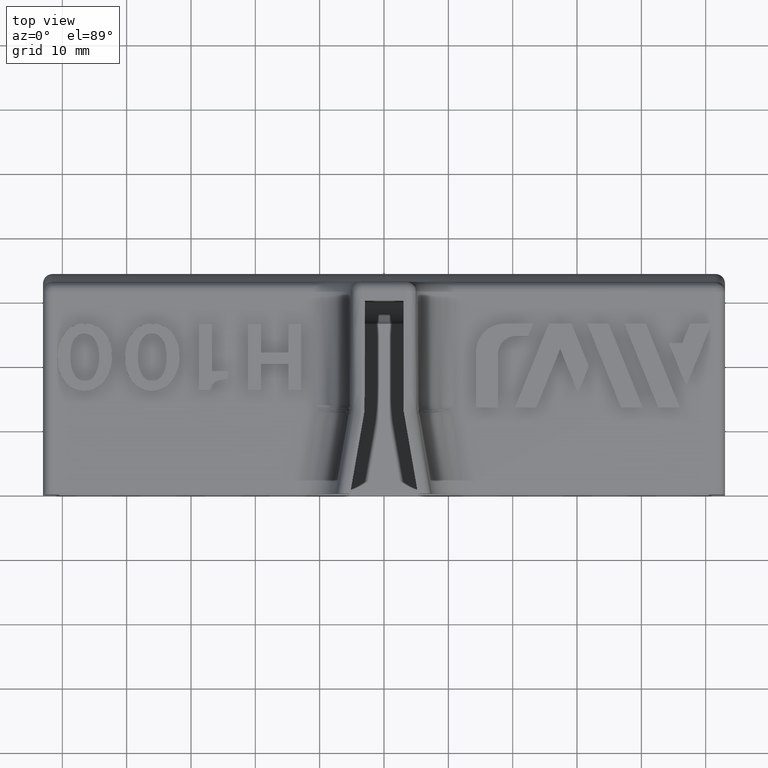
[diagram: clean part render]
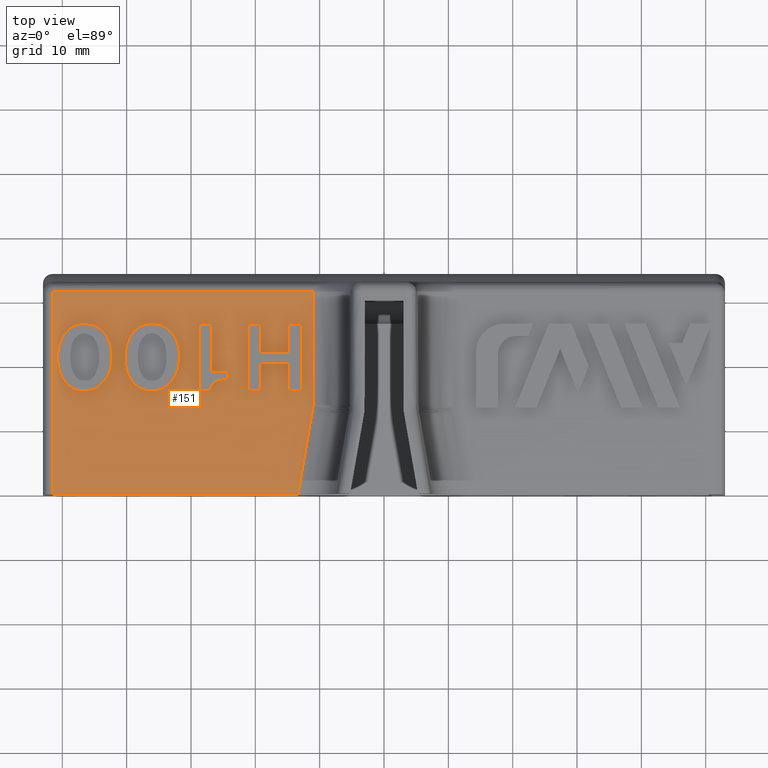
[diagram: same view with one face highlighted and labeled with its STEP entity id]
A machine part, top view. The second image highlights one B-rep face of the part: STEP entity #151.
In plain terms, the highlighted planar face has unit normal (0, 0, 1).
Its self-contained STEP definition (entity closure, byte-faithful):
#151=ADVANCED_FACE('',(#314,#315,#316,#317,#318),#319,.T.);
#314=FACE_BOUND('',#870,.T.);
#315=FACE_OUTER_BOUND('',#871,.T.);
#316=FACE_BOUND('',#872,.T.);
#317=FACE_BOUND('',#873,.T.);
#318=FACE_BOUND('',#874,.T.);
#319=PLANE('',#875);
#870=EDGE_LOOP('',(#2020,#2021));
#871=EDGE_LOOP('',(#2022,#2023,#2024,#2025,#2026));
#872=EDGE_LOOP('',(#2027,#2028,#2029,#2030,#2031,#2032,#2033,#2034,#2035,#2036,#2037,#2038));
#873=EDGE_LOOP('',(#2039,#2040,#2041,#2042,#2043,#2044,#2045));
#874=EDGE_LOOP('',(#2046,#2047));
#875=AXIS2_PLACEMENT_3D('',#2048,#2049,#2050);
#2020=ORIENTED_EDGE('',*,*,#2867,.T.);
#2021=ORIENTED_EDGE('',*,*,#2986,.T.);
#2022=ORIENTED_EDGE('',*,*,#2987,.T.);
#2023=ORIENTED_EDGE('',*,*,#2955,.T.);
#2024=ORIENTED_EDGE('',*,*,#2988,.T.);
#2025=ORIENTED_EDGE('',*,*,#2989,.T.);
#2026=ORIENTED_EDGE('',*,*,#2990,.F.);
#2027=ORIENTED_EDGE('',*,*,#2917,.T.);
#2028=ORIENTED_EDGE('',*,*,#2940,.T.);
#2029=ORIENTED_EDGE('',*,*,#2938,.T.);
#2030=ORIENTED_EDGE('',*,*,#2936,.T.);
#2031=ORIENTED_EDGE('',*,*,#2934,.T.);
#2032=ORIENTED_EDGE('',*,*,#2932,.T.);
#2033=ORIENTED_EDGE('',*,*,#2930,.T.);
#2034=ORIENTED_EDGE('',*,*,#2928,.T.);
#2035=ORIENTED_EDGE('',*,*,#2926,.T.);
#2036=ORIENTED_EDGE('',*,*,#2924,.T.);
#2037=ORIENTED_EDGE('',*,*,#2922,.T.);
#2038=ORIENTED_EDGE('',*,*,#2920,.T.);
#2039=ORIENTED_EDGE('',*,*,#2991,.T.);
#2040=ORIENTED_EDGE('',*,*,#2902,.T.);
#2041=ORIENTED_EDGE('',*,*,#2898,.T.);
#2042=ORIENTED_EDGE('',*,*,#2992,.T.);
#2043=ORIENTED_EDGE('',*,*,#2993,.T.);
#2044=ORIENTED_EDGE('',*,*,#2994,.T.);
#2045=ORIENTED_EDGE('',*,*,#2995,.T.);
#2046=ORIENTED_EDGE('',*,*,#2875,.T.);
#2047=ORIENTED_EDGE('',*,*,#2996,.T.);
#2048=CARTESIAN_POINT('',(-53.0,3.46944695195361E-15,6.0));
#2049=DIRECTION('',(1.43492962746861E-48,6.12323399573677E-17,1.0));
#2050=DIRECTION('',(-1.0,1.22464679914735E-16,-7.49879891330929E-33));
#2867=EDGE_CURVE('',#3171,#3168,#3172,.T.);
#2875=EDGE_CURVE('',#3187,#3184,#3188,.T.);
#2898=EDGE_CURVE('',#3230,#3231,#3232,.T.);
#2902=EDGE_CURVE('',#3238,#3230,#3239,.T.);
#2917=EDGE_CURVE('',#3267,#3268,#3269,.T.);
#2920=EDGE_CURVE('',#3272,#3267,#3273,.T.);
#2922=EDGE_CURVE('',#3275,#3272,#3276,.T.);
#2924=EDGE_CURVE('',#3278,#3275,#3279,.T.);
#2926=EDGE_CURVE('',#3281,#3278,#3282,.T.);
#2928=EDGE_CURVE('',#3284,#3281,#3285,.T.);
#2930=EDGE_CURVE('',#3287,#3284,#3288,.T.);
#2932=EDGE_CURVE('',#3290,#3287,#3291,.T.);
#2934=EDGE_CURVE('',#3293,#3290,#3294,.T.);
#2936=EDGE_CURVE('',#3296,#3293,#3297,.T.);
#2938=EDGE_CURVE('',#3299,#3296,#3300,.T.);
#2940=EDGE_CURVE('',#3268,#3299,#3302,.T.);
#2955=EDGE_CURVE('',#3323,#3328,#3330,.F.);
#2986=EDGE_CURVE('',#3168,#3171,#3380,.T.);
#2987=EDGE_CURVE('',#3381,#3323,#3382,.T.);
#2988=EDGE_CURVE('',#3328,#3383,#3384,.F.);
#2989=EDGE_CURVE('',#3383,#3385,#3386,.T.);
#2990=EDGE_CURVE('',#3381,#3385,#3387,.F.);
#2991=EDGE_CURVE('',#3388,#3238,#3389,.T.);
#2992=EDGE_CURVE('',#3231,#3390,#3391,.T.);
#2993=EDGE_CURVE('',#3390,#3392,#3393,.T.);
#2994=EDGE_CURVE('',#3392,#3394,#3395,.T.);
#2995=EDGE_CURVE('',#3394,#3388,#3396,.T.);
#2996=EDGE_CURVE('',#3184,#3187,#3397,.T.);
#3168=VERTEX_POINT('',#3652);
#3171=VERTEX_POINT('',#3656);
#3172=B_SPLINE_CURVE_WITH_KNOTS('',2,(#3657,#3658,#3659,#3660,#3661,#3662,#3663,#3664,#3665),.UNSPECIFIED.,.F.,.F.,(3,2,2,2,3),(0.0,1.0,2.0,3.0,4.0),.UNSPECIFIED.);
#3184=VERTEX_POINT('',#3704);
#3187=VERTEX_POINT('',#3708);
#3188=B_SPLINE_CURVE_WITH_KNOTS('',2,(#3709,#3710,#3711,#3712,#3713,#3714,#3715,#3716,#3717),.UNSPECIFIED.,.F.,.F.,(3,2,2,2,3),(0.0,1.0,2.0,3.0,4.0),.UNSPECIFIED.);
#3230=VERTEX_POINT('',#3790);
#3231=VERTEX_POINT('',#3791);
#3232=B_SPLINE_CURVE_WITH_KNOTS('',2,(#3792,#3793,#3794,#3795,#3796),.UNSPECIFIED.,.F.,.F.,(3,2,3),(1.0,2.0,3.0),.UNSPECIFIED.);
#3238=VERTEX_POINT('',#3808);
#3239=B_SPLINE_CURVE_WITH_KNOTS('',2,(#3809,#3810,#3811),.UNSPECIFIED.,.F.,.F.,(3,3),(0.0,1.0),.UNSPECIFIED.);
#3267=VERTEX_POINT('',#3866);
#3268=VERTEX_POINT('',#3867);
#3269=B_SPLINE_CURVE_WITH_KNOTS('',2,(#3868,#3869,#3870),.UNSPECIFIED.,.F.,.F.,(3,3),(11.0,12.0),.UNSPECIFIED.);
#3272=VERTEX_POINT('',#3875);
#3273=B_SPLINE_CURVE_WITH_KNOTS('',2,(#3876,#3877,#3878),.UNSPECIFIED.,.F.,.F.,(3,3),(10.0,11.0),.UNSPECIFIED.);
#3275=VERTEX_POINT('',#3881);
#3276=B_SPLINE_CURVE_WITH_KNOTS('',2,(#3882,#3883,#3884),.UNSPECIFIED.,.F.,.F.,(3,3),(9.0,10.0),.UNSPECIFIED.);
#3278=VERTEX_POINT('',#3887);
#3279=B_SPLINE_CURVE_WITH_KNOTS('',2,(#3888,#3889,#3890),.UNSPECIFIED.,.F.,.F.,(3,3),(8.0,9.0),.UNSPECIFIED.);
#3281=VERTEX_POINT('',#3893);
#3282=B_SPLINE_CURVE_WITH_KNOTS('',2,(#3894,#3895,#3896),.UNSPECIFIED.,.F.,.F.,(3,3),(7.0,8.0),.UNSPECIFIED.);
#3284=VERTEX_POINT('',#3899);
#3285=B_SPLINE_CURVE_WITH_KNOTS('',2,(#3900,#3901,#3902),.UNSPECIFIED.,.F.,.F.,(3,3),(6.0,7.0),.UNSPECIFIED.);
#3287=VERTEX_POINT('',#3905);
#3288=B_SPLINE_CURVE_WITH_KNOTS('',2,(#3906,#3907,#3908),.UNSPECIFIED.,.F.,.F.,(3,3),(5.0,6.0),.UNSPECIFIED.);
#3290=VERTEX_POINT('',#3911);
#3291=B_SPLINE_CURVE_WITH_KNOTS('',2,(#3912,#3913,#3914),.UNSPECIFIED.,.F.,.F.,(3,3),(4.0,5.0),.UNSPECIFIED.);
#3293=VERTEX_POINT('',#3917);
#3294=B_SPLINE_CURVE_WITH_KNOTS('',2,(#3918,#3919,#3920),.UNSPECIFIED.,.F.,.F.,(3,3),(3.0,4.0),.UNSPECIFIED.);
#3296=VERTEX_POINT('',#3923);
#3297=B_SPLINE_CURVE_WITH_KNOTS('',2,(#3924,#3925,#3926),.UNSPECIFIED.,.F.,.F.,(3,3),(2.0,3.0),.UNSPECIFIED.);
#3299=VERTEX_POINT('',#3929);
#3300=B_SPLINE_CURVE_WITH_KNOTS('',2,(#3930,#3931,#3932),.UNSPECIFIED.,.F.,.F.,(3,3),(1.0,2.0),.UNSPECIFIED.);
#3302=B_SPLINE_CURVE_WITH_KNOTS('',2,(#3935,#3936,#3937),.UNSPECIFIED.,.F.,.F.,(3,3),(0.0,1.0),.UNSPECIFIED.);
#3323=VERTEX_POINT('',#4077);
#3328=VERTEX_POINT('',#4092);
#3330=LINE('',#4094,#4095);
#3380=B_SPLINE_CURVE_WITH_KNOTS('',2,(#4303,#4304,#4305,#4306,#4307,#4308,#4309,#4310,#4311),.UNSPECIFIED.,.F.,.F.,(3,2,2,2,3),(4.0,5.0,6.0,7.0,8.0),.UNSPECIFIED.);
#3381=VERTEX_POINT('',#4312);
#3382=B_SPLINE_CURVE_WITH_KNOTS('',1,(#4313,#4314),.UNSPECIFIED.,.F.,.F.,(2,2),(0.0,0.921574682430469),.UNSPECIFIED.);
#3383=VERTEX_POINT('',#4315);
#3384=LINE('',#4316,#4317);
#3385=VERTEX_POINT('',#4318);
#3386=LINE('',#4319,#4320);
#3387=B_SPLINE_CURVE_WITH_KNOTS('',3,(#4321,#4322,#4323,#4324,#4325,#4326,#4327,#4328,#4329,#4330),.UNSPECIFIED.,.F.,.F.,(4,3,1,1,1,4),(0.0379210014763866,0.166666666666666,0.333333333333333,0.499999999999999,0.666666666666666,0.83203125),.UNSPECIFIED.);
#3388=VERTEX_POINT('',#4331);
#3389=B_SPLINE_CURVE_WITH_KNOTS('',2,(#4332,#4333,#4334),.UNSPECIFIED.,.F.,.F.,(3,3),(7.0,8.0),.UNSPECIFIED.);
#3390=VERTEX_POINT('',#4335);
#3391=B_SPLINE_CURVE_WITH_KNOTS('',2,(#4336,#4337,#4338),.UNSPECIFIED.,.F.,.F.,(3,3),(3.0,4.0),.UNSPECIFIED.);
#3392=VERTEX_POINT('',#4339);
#3393=B_SPLINE_CURVE_WITH_KNOTS('',2,(#4340,#4341,#4342),.UNSPECIFIED.,.F.,.F.,(3,3),(4.0,5.0),.UNSPECIFIED.);
#3394=VERTEX_POINT('',#4343);
#3395=B_SPLINE_CURVE_WITH_KNOTS('',2,(#4344,#4345,#4346),.UNSPECIFIED.,.F.,.F.,(3,3),(5.0,6.0),.UNSPECIFIED.);
#3396=B_SPLINE_CURVE_WITH_KNOTS('',2,(#4347,#4348,#4349),.UNSPECIFIED.,.F.,.F.,(3,3),(6.0,7.0),.UNSPECIFIED.);
#3397=B_SPLINE_CURVE_WITH_KNOTS('',2,(#4350,#4351,#4352,#4353,#4354,#4355,#4356,#4357,#4358),.UNSPECIFIED.,.F.,.F.,(3,2,2,2,3),(4.0,5.0,6.0,7.0,8.0),.UNSPECIFIED.);
#3652=CARTESIAN_POINT('',(-38.9830447769085,17.3376295199831,6.0));
#3656=CARTESIAN_POINT('',(-33.1182402039185,25.3004898040784,6.0));
#3657=CARTESIAN_POINT('',(-33.1182402039185,25.3004898040784,6.0));
#3658=CARTESIAN_POINT('',(-31.86875,24.0,6.0));
#3659=CARTESIAN_POINT('',(-31.7761053810419,21.7996902997456,6.0));
#3660=CARTESIAN_POINT('',(-31.66875,19.25,6.0));
#3661=CARTESIAN_POINT('',(-32.9778286919516,17.6072345826489,6.0));
#3662=CARTESIAN_POINT('',(-34.21875,16.05,6.0));
#3663=CARTESIAN_POINT('',(-36.06875,16.05,6.0));
#3664=CARTESIAN_POINT('',(-37.86875,16.05,6.0));
#3665=CARTESIAN_POINT('',(-38.9830447769085,17.3376295199831,6.0));
#3704=CARTESIAN_POINT('',(-49.4830447769084,17.3376295199831,6.0));
#3708=CARTESIAN_POINT('',(-43.6182402039184,25.3004898040784,6.0));
#3709=CARTESIAN_POINT('',(-43.6182402039184,25.3004898040784,6.0));
#3710=CARTESIAN_POINT('',(-42.36875,24.0,6.0));
#3711=CARTESIAN_POINT('',(-42.2761053810419,21.7996902997456,6.0));
#3712=CARTESIAN_POINT('',(-42.16875,19.25,6.0));
#3713=CARTESIAN_POINT('',(-43.4778286919516,17.6072345826489,6.0));
#3714=CARTESIAN_POINT('',(-44.71875,16.05,6.0));
#3715=CARTESIAN_POINT('',(-46.56875,16.05,6.0));
#3716=CARTESIAN_POINT('',(-48.36875,16.05,6.0));
#3717=CARTESIAN_POINT('',(-49.4830447769084,17.3376295199831,6.0));
#3790=CARTESIAN_POINT('',(-24.25,17.9,6.0));
#3791=CARTESIAN_POINT('',(-27.05,16.15,6.0));
#3792=CARTESIAN_POINT('',(-24.25,17.9,6.0));
#3793=CARTESIAN_POINT('',(-25.55,17.8,6.0));
#3794=CARTESIAN_POINT('',(-26.1057304785895,17.5110201511336,6.0));
#3795=CARTESIAN_POINT('',(-26.8,17.15,6.0));
#3796=CARTESIAN_POINT('',(-27.05,16.15,6.0));
#3808=CARTESIAN_POINT('',(-24.25,19.15,6.0));
#3809=CARTESIAN_POINT('',(-24.25,19.15,6.0));
#3810=CARTESIAN_POINT('',(-24.25,18.525,6.0));
#3811=CARTESIAN_POINT('',(-24.25,17.9,6.0));
#3866=CARTESIAN_POINT('',(-12.875,26.45,6.0));
#3867=CARTESIAN_POINT('',(-12.875,16.15,6.0));
#3868=CARTESIAN_POINT('',(-12.875,26.45,6.0));
#3869=CARTESIAN_POINT('',(-12.875,21.3,6.0));
#3870=CARTESIAN_POINT('',(-12.875,16.15,6.0));
#3875=CARTESIAN_POINT('',(-14.875,26.45,6.0));
#3876=CARTESIAN_POINT('',(-14.875,26.45,6.0));
#3877=CARTESIAN_POINT('',(-13.875,26.45,6.0));
#3878=CARTESIAN_POINT('',(-12.875,26.45,6.0));
#3881=CARTESIAN_POINT('',(-14.875,22.0,6.0));
#3882=CARTESIAN_POINT('',(-14.875,22.0,6.0));
#3883=CARTESIAN_POINT('',(-14.875,24.225,6.0));
#3884=CARTESIAN_POINT('',(-14.875,26.45,6.0));
#3887=CARTESIAN_POINT('',(-19.125,22.0,6.0));
#3888=CARTESIAN_POINT('',(-19.125,22.0,6.0));
#3889=CARTESIAN_POINT('',(-17.0,22.0,6.0));
#3890=CARTESIAN_POINT('',(-14.875,22.0,6.0));
#3893=CARTESIAN_POINT('',(-19.125,26.45,6.0));
#3894=CARTESIAN_POINT('',(-19.125,26.45,6.0));
#3895=CARTESIAN_POINT('',(-19.125,24.225,6.0));
#3896=CARTESIAN_POINT('',(-19.125,22.0,6.0));
#3899=CARTESIAN_POINT('',(-21.125,26.45,6.0));
#3900=CARTESIAN_POINT('',(-21.125,26.45,6.0));
#3901=CARTESIAN_POINT('',(-20.125,26.45,6.0));
#3902=CARTESIAN_POINT('',(-19.125,26.45,6.0));
#3905=CARTESIAN_POINT('',(-21.125,16.15,6.0));
#3906=CARTESIAN_POINT('',(-21.125,16.15,6.0));
#3907=CARTESIAN_POINT('',(-21.125,21.3,6.0));
#3908=CARTESIAN_POINT('',(-21.125,26.45,6.0));
#3911=CARTESIAN_POINT('',(-19.125,16.15,6.0));
#3912=CARTESIAN_POINT('',(-19.125,16.15,6.0));
#3913=CARTESIAN_POINT('',(-20.125,16.15,6.0));
#3914=CARTESIAN_POINT('',(-21.125,16.15,6.0));
#3917=CARTESIAN_POINT('',(-19.125,20.25,6.0));
#3918=CARTESIAN_POINT('',(-19.125,20.25,6.0));
#3919=CARTESIAN_POINT('',(-19.125,18.2,6.0));
#3920=CARTESIAN_POINT('',(-19.125,16.15,6.0));
#3923=CARTESIAN_POINT('',(-14.875,20.25,6.0));
#3924=CARTESIAN_POINT('',(-14.875,20.25,6.0));
#3925=CARTESIAN_POINT('',(-17.0,20.25,6.0));
#3926=CARTESIAN_POINT('',(-19.125,20.25,6.0));
#3929=CARTESIAN_POINT('',(-14.875,16.15,6.0));
#3930=CARTESIAN_POINT('',(-14.875,16.15,6.0));
#3931=CARTESIAN_POINT('',(-14.875,18.2,6.0));
#3932=CARTESIAN_POINT('',(-14.875,20.25,6.0));
#3935=CARTESIAN_POINT('',(-12.875,16.15,6.0));
#3936=CARTESIAN_POINT('',(-13.875,16.15,6.0));
#3937=CARTESIAN_POINT('',(-14.875,16.15,6.0));
#4077=CARTESIAN_POINT('',(-11.0,31.5,6.0));
#4092=CARTESIAN_POINT('',(-51.5,31.5,6.0));
#4094=CARTESIAN_POINT('',(-53.0,31.5,6.0));
#4095=VECTOR('',#5079,1000.0);
#4303=CARTESIAN_POINT('',(-38.9830447769085,17.3376295199831,6.0));
#4304=CARTESIAN_POINT('',(-40.11875,18.65,6.0));
#4305=CARTESIAN_POINT('',(-40.2344958563536,20.8491712707182,6.0));
#4306=CARTESIAN_POINT('',(-40.36875,23.4,6.0));
#4307=CARTESIAN_POINT('',(-39.1383339311335,25.0149210903874,6.0));
#4308=CARTESIAN_POINT('',(-37.96875,26.55,6.0));
#4309=CARTESIAN_POINT('',(-36.06875,26.55,6.0));
#4310=CARTESIAN_POINT('',(-34.31875,26.55,6.0));
#4311=CARTESIAN_POINT('',(-33.1182402039185,25.3004898040784,6.0));
#4312=CARTESIAN_POINT('',(-11.0,13.8735234171017,6.0));
#4313=CARTESIAN_POINT('',(-11.0,13.8735234171017,6.0));
#4314=CARTESIAN_POINT('',(-11.0,31.5,6.0));
#4315=CARTESIAN_POINT('',(-51.5,3.46944695195361E-15,6.0));
#4316=CARTESIAN_POINT('',(-51.5,3.46944695195361E-15,6.0));
#4317=VECTOR('',#5109,1000.0);
#4318=CARTESIAN_POINT('',(-13.3848104205245,-3.46944695195361E-15,6.0));
#4319=CARTESIAN_POINT('',(-53.0,3.46944695195361E-15,6.0));
#4320=VECTOR('',#5110,1000.0);
#4321=CARTESIAN_POINT('',(-13.3848104205245,-1.60461921527855E-14,6.0));
#4322=CARTESIAN_POINT('',(-12.6101299430001,4.39343130819716,6.0));
#4323=CARTESIAN_POINT('',(-11.8354494654756,8.78686261639434,6.0));
#4324=CARTESIAN_POINT('',(-11.0607689879512,13.1802939245915,6.0));
#4325=CARTESIAN_POINT('',(-11.0506689516526,13.237574076829,6.0));
#4326=CARTESIAN_POINT('',(-11.0329608575211,13.3526220090007,6.0));
#4327=CARTESIAN_POINT('',(-11.0139568982257,13.5261530515283,6.0));
#4328=CARTESIAN_POINT('',(-11.0025685300171,13.699894138417,6.0));
#4329=CARTESIAN_POINT('',(-11.0000199117509,13.8158136678226,6.0));
#4330=CARTESIAN_POINT('',(-11.0000002324331,13.8735234171022,6.0));
#4331=CARTESIAN_POINT('',(-26.75,19.15,6.0));
#4332=CARTESIAN_POINT('',(-26.75,19.15,6.0));
#4333=CARTESIAN_POINT('',(-25.5,19.15,6.0));
#4334=CARTESIAN_POINT('',(-24.25,19.15,6.0));
#4335=CARTESIAN_POINT('',(-28.75,16.15,6.0));
#4336=CARTESIAN_POINT('',(-27.05,16.15,6.0));
#4337=CARTESIAN_POINT('',(-27.9,16.15,6.0));
#4338=CARTESIAN_POINT('',(-28.75,16.15,6.0));
#4339=CARTESIAN_POINT('',(-28.75,26.45,6.0));
#4340=CARTESIAN_POINT('',(-28.75,16.15,6.0));
#4341=CARTESIAN_POINT('',(-28.75,21.3,6.0));
#4342=CARTESIAN_POINT('',(-28.75,26.45,6.0));
#4343=CARTESIAN_POINT('',(-26.75,26.45,6.0));
#4344=CARTESIAN_POINT('',(-28.75,26.45,6.0));
#4345=CARTESIAN_POINT('',(-27.75,26.45,6.0));
#4346=CARTESIAN_POINT('',(-26.75,26.45,6.0));
#4347=CARTESIAN_POINT('',(-26.75,26.45,6.0));
#4348=CARTESIAN_POINT('',(-26.75,22.8,6.0));
#4349=CARTESIAN_POINT('',(-26.75,19.15,6.0));
#4350=CARTESIAN_POINT('',(-49.4830447769084,17.3376295199831,6.0));
#4351=CARTESIAN_POINT('',(-50.61875,18.65,6.0));
#4352=CARTESIAN_POINT('',(-50.7344958563536,20.8491712707182,6.0));
#4353=CARTESIAN_POINT('',(-50.86875,23.4,6.0));
#4354=CARTESIAN_POINT('',(-49.6383339311334,25.0149210903874,6.0));
#4355=CARTESIAN_POINT('',(-48.46875,26.55,6.0));
#4356=CARTESIAN_POINT('',(-46.56875,26.55,6.0));
#4357=CARTESIAN_POINT('',(-44.81875,26.55,6.0));
#4358=CARTESIAN_POINT('',(-43.6182402039184,25.3004898040784,6.0));
#5079=DIRECTION('',(1.0,-1.22464679914735E-16,7.49879891330929E-33));
#5109=DIRECTION('',(1.22464679914735E-16,1.0,-6.12323399573677E-17));
#5110=DIRECTION('',(1.0,-1.22464679914735E-16,7.49879891330929E-33));